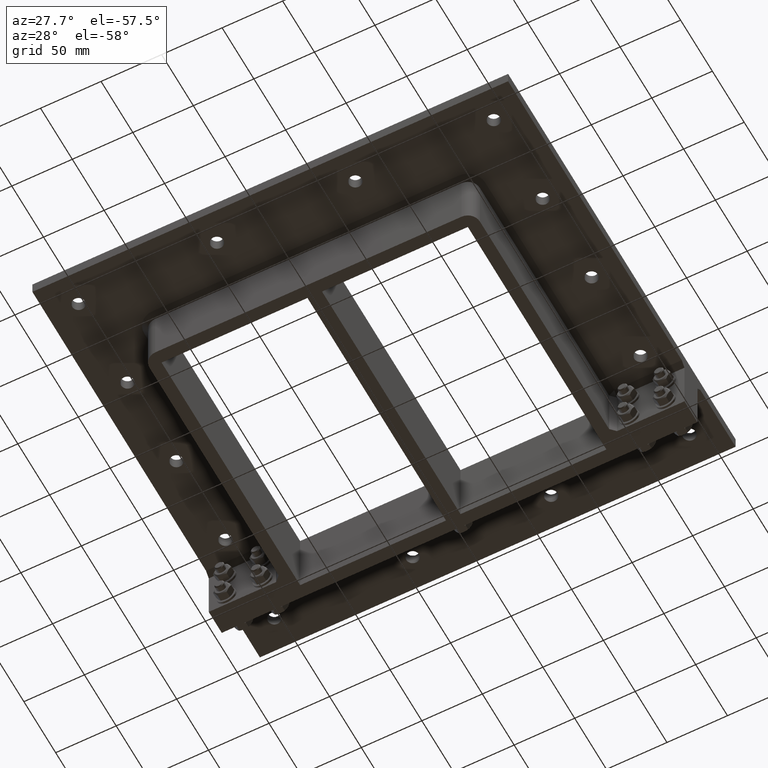
[diagram: clean part render]
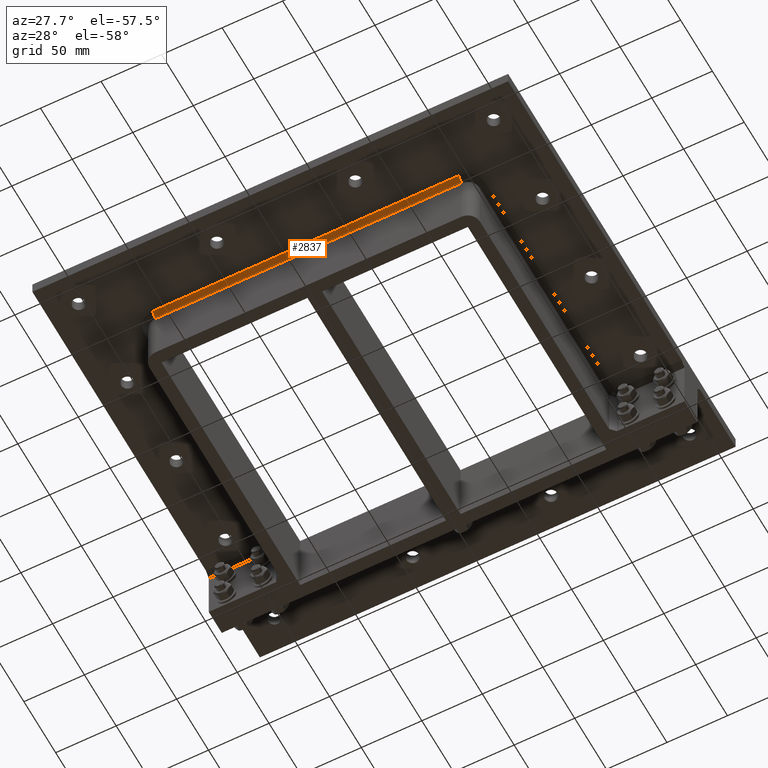
[diagram: same view with one face highlighted and labeled with its STEP entity id]
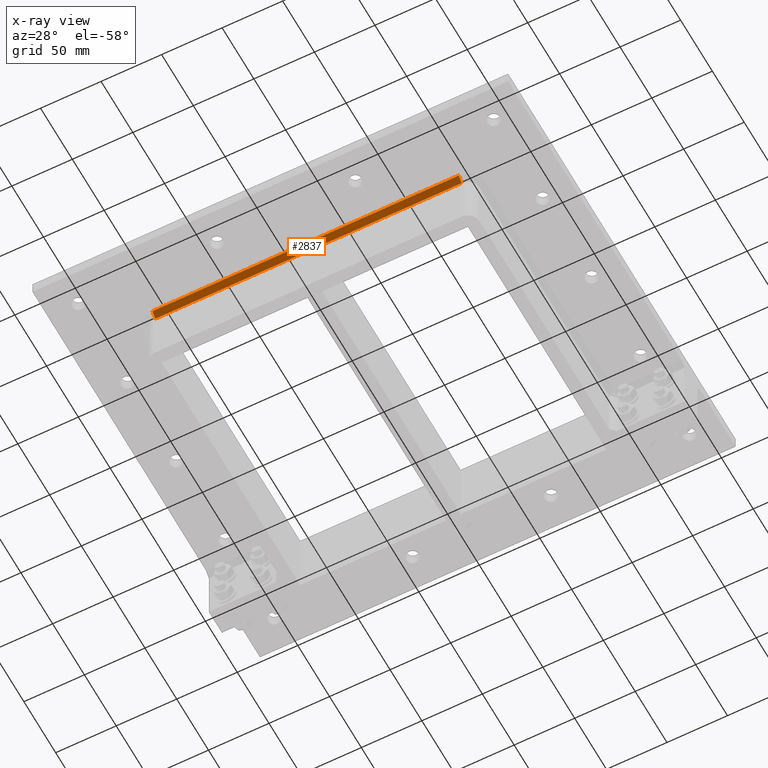
[diagram: x-ray of the same camera — body ghosted, the highlighted face saturated]
A machine part, auxiliary view. The second image highlights one B-rep face of the part: STEP entity #2837.
The next image is the same camera in x-ray: the body ghosted, the highlighted face saturated — about 0% of this face is hidden behind the body in this view.
In plain terms, the highlighted planar face has unit normal (0, -0.7071, -0.7071).
Its self-contained STEP definition (entity closure, byte-faithful):
#474=FACE_OUTER_BOUND('',#635,.T.);
#635=EDGE_LOOP('',(#1991,#1992,#1993,#1994));
#899=LINE('',#4432,#1122);
#900=LINE('',#4438,#1123);
#901=LINE('',#4439,#1124);
#902=LINE('',#4440,#1125);
#1122=VECTOR('',#3559,10.);
#1123=VECTOR('',#3566,10.);
#1124=VECTOR('',#3567,10.);
#1125=VECTOR('',#3568,10.);
#1342=VERTEX_POINT('',#4430);
#1343=VERTEX_POINT('',#4431);
#1344=VERTEX_POINT('',#4436);
#1345=VERTEX_POINT('',#4437);
#1596=EDGE_CURVE('',#1342,#1343,#899,.T.);
#1599=EDGE_CURVE('',#1344,#1345,#900,.T.);
#1600=EDGE_CURVE('',#1345,#1343,#901,.T.);
#1601=EDGE_CURVE('',#1342,#1344,#902,.T.);
#1991=ORIENTED_EDGE('',*,*,#1599,.T.);
#1992=ORIENTED_EDGE('',*,*,#1600,.T.);
#1993=ORIENTED_EDGE('',*,*,#1596,.F.);
#1994=ORIENTED_EDGE('',*,*,#1601,.T.);
#2750=PLANE('',#3216);
#2837=ADVANCED_FACE('',(#474),#2750,.T.);
#3216=AXIS2_PLACEMENT_3D('',#4435,#3564,#3565);
#3559=DIRECTION('',(0.,0.707106781186547,-0.707106781186548));
#3564=DIRECTION('center_axis',(0.,-0.707106781186548,-0.707106781186547));
#3565=DIRECTION('ref_axis',(-1.,0.,0.));
#3566=DIRECTION('',(2.921102248714E-15,0.707106781186547,-0.707106781186548));
#3567=DIRECTION('',(1.,0.,0.));
#3568=DIRECTION('',(-1.,0.,0.));
#4430=CARTESIAN_POINT('',(126.5,-123.3,-10.));
#4431=CARTESIAN_POINT('',(126.5,-119.,-14.3));
#4432=CARTESIAN_POINT('',(126.5,-123.3,-10.));
#4435=CARTESIAN_POINT('Origin',(63.25,-121.15,-12.15));
#4436=CARTESIAN_POINT('',(-126.5,-123.3,-10.));
#4437=CARTESIAN_POINT('',(-126.5,-119.,-14.3));
#4438=CARTESIAN_POINT('',(-126.5,-123.3,-10.));
#4439=CARTESIAN_POINT('',(63.25,-119.,-14.3));
#4440=CARTESIAN_POINT('',(63.25,-123.3,-10.));